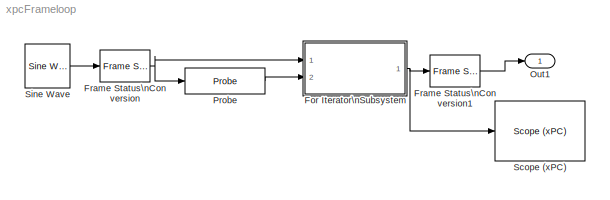
MODEL xpcFrameloop
KIND model
CONFIG AbsTol = auto
CONFIG FixedStep = auto
CONFIG MaxStep = auto
CONFIG MinStep = auto
CONFIG RelTol = 1e-3
CONFIG Solver = FixedStepDiscrete
CONFIG SolverMode = Auto
CONFIG StartTime = 0.0
CONFIG StopTime = 10.0
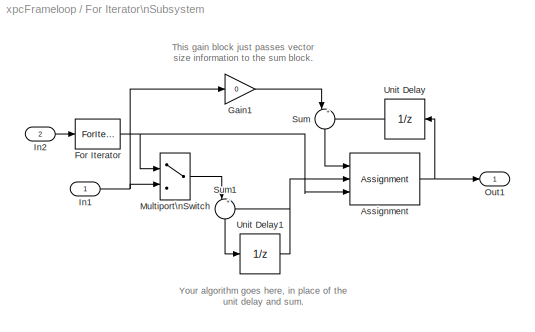
BLOCK [SubSystem] For Iterator\nSubsystem
  Ports = [2, 1]
  TreatAsAtomicUnit = on
BLOCK [Assignment] For Iterator\nSubsystem/Assignment
  ElementSrc = External
  Ports = [3, 1]
BLOCK [ForIterator] For Iterator\nSubsystem/For Iterator
  IterationSource = external
  NumIters = 10
  Ports = [1, 1]
BLOCK [Gain] For Iterator\nSubsystem/Gain1
  Gain = 0
BLOCK [Inport] For Iterator\nSubsystem/In1
BLOCK [Inport] For Iterator\nSubsystem/In2
  Port = 2
BLOCK [MultiPortSwitch] For Iterator\nSubsystem/Multiport\nSwitch
  Inputs = 1
  Ports = [2, 1]
BLOCK [Outport] For Iterator\nSubsystem/Out1
BLOCK [Sum] For Iterator\nSubsystem/Sum
  IconShape = round
  Inputs = |++
  Ports = [2, 1]
BLOCK [Sum] For Iterator\nSubsystem/Sum1
  IconShape = round
  Inputs = |++
  Ports = [2, 1]
BLOCK [UnitDelay] For Iterator\nSubsystem/Unit Delay
  SampleTime = -1
BLOCK [UnitDelay] For Iterator\nSubsystem/Unit Delay1
  SampleTime = -1
BLOCK [Reference] Frame Status\nConversion  REF=dspsigattribs/Frame Status\nConversion
  Ports = [1, 1]
  SourceBlock = dspsigattribs/Frame Status\nConversion
  SourceType = Frame Status Conversion
  growRefPort = off
  outframe = Sample-based
BLOCK [Reference] Frame Status\nConversion1  REF=dspsigattribs/Frame Status\nConversion
  Ports = [1, 1]
  SourceBlock = dspsigattribs/Frame Status\nConversion
  SourceType = Frame Status Conversion
  growRefPort = off
  outframe = Frame-based
BLOCK [Outport] Out1
BLOCK [Probe] Probe
  Ports = [1, 1]
  ProbeComplexSignal = off
  ProbeSampleTime = off
BLOCK [Reference] Scope (xPC)   REF=xpclib/Misc./Scope (xPC) 
  Ports = [1]
  SourceBlock = xpclib/Misc./Scope (xPC)
  SourceType = xpcscopeblock
  autostart = on
  grid = on
  interleave = 1
  noprepostsamples = 0
  nosamples = 100
  scopeno = 1
  scopetype = Target
  triggerlevel = 0.0
  triggermode = FreeRun
  triggersample = 0
  triggerscope = 1
  triggersignal = 1
  triggerslope = either
  viewmode = Graphical redraw
  ylimits = [0,0]
BLOCK [Reference] Sine Wave  REF=dspsrcs4/Sine Wave
  Amplitude = 1
  CompMethod = Trigonometric fcn
  Frequency = 100
  OutComplex = Real
  Phase = 0
  Ports = [0, 1]
  ResetState = Restart at time zero
  SampleMode = Discrete
  SampleTime = 1/1000
  SamplesPerFrame = 11
  SourceBlock = dspsrcs4/Sine Wave
  SourceType = Sine Wave
  TableSize = Speed
  additionalParams = off
  dataType = double
  fracBitsMode = Best precision
  numFracBits = 14
  udDataType = sfix(16)
  wordLen = 16
ANNOTATION For Iterator\nSubsystem: This gain block just passes vector \nsize information to the sum block.
ANNOTATION For Iterator\nSubsystem: Your algorithm goes here, in place of the\nunit delay and sum.
NET For Iterator\nSubsystem/Assignment:1 -> For Iterator\nSubsystem/Out1:1, For Iterator\nSubsystem/Unit Delay:1
NET For Iterator\nSubsystem/For Iterator:1 -> For Iterator\nSubsystem/Assignment:3, For Iterator\nSubsystem/Multiport\nSwitch:1
LINE For Iterator\nSubsystem/Gain1:1 -> For Iterator\nSubsystem/Sum:1
NET For Iterator\nSubsystem/In1:1 -> For Iterator\nSubsystem/Gain1:1, For Iterator\nSubsystem/Multiport\nSwitch:2
LINE For Iterator\nSubsystem/In2:1 -> For Iterator\nSubsystem/For Iterator:1
LINE For Iterator\nSubsystem/Multiport\nSwitch:1 -> For Iterator\nSubsystem/Sum1:1
LINE For Iterator\nSubsystem/Sum1:1 -> For Iterator\nSubsystem/Unit Delay1:1
LINE For Iterator\nSubsystem/Sum:1 -> For Iterator\nSubsystem/Assignment:1
NET For Iterator\nSubsystem/Unit Delay1:1 -> For Iterator\nSubsystem/Assignment:2, For Iterator\nSubsystem/Sum1:2
LINE For Iterator\nSubsystem/Unit Delay:1 -> For Iterator\nSubsystem/Sum:2
NET For Iterator\nSubsystem:1 -> Frame Status\nConversion1:1, Scope (xPC) :1
LINE Frame Status\nConversion1:1 -> Out1:1
NET Frame Status\nConversion:1 -> For Iterator\nSubsystem:1, Probe:1
LINE Probe:1 -> For Iterator\nSubsystem:2
LINE Sine Wave:1 -> Frame Status\nConversion:1
note: NET lines group one-source signal fan-out (src -> all destinations, sorted); 1:1 wires keep LINE
